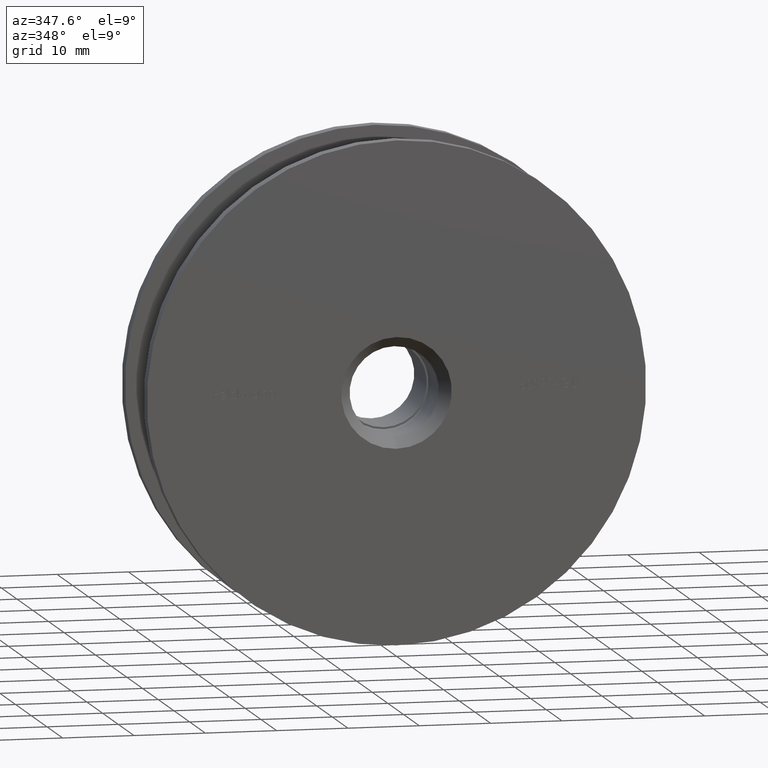
[diagram: clean part render]
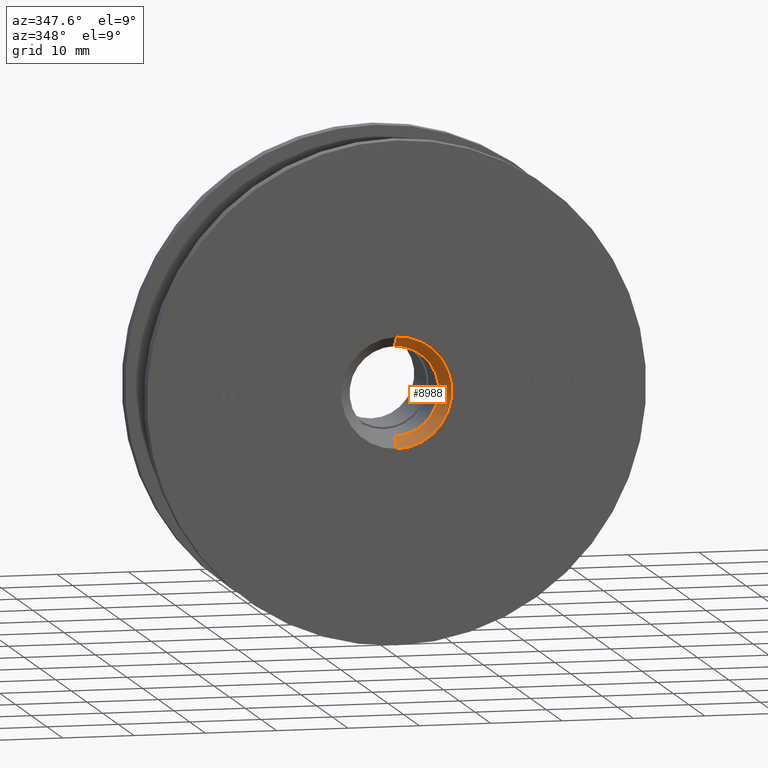
[diagram: same view with one face highlighted and labeled with its STEP entity id]
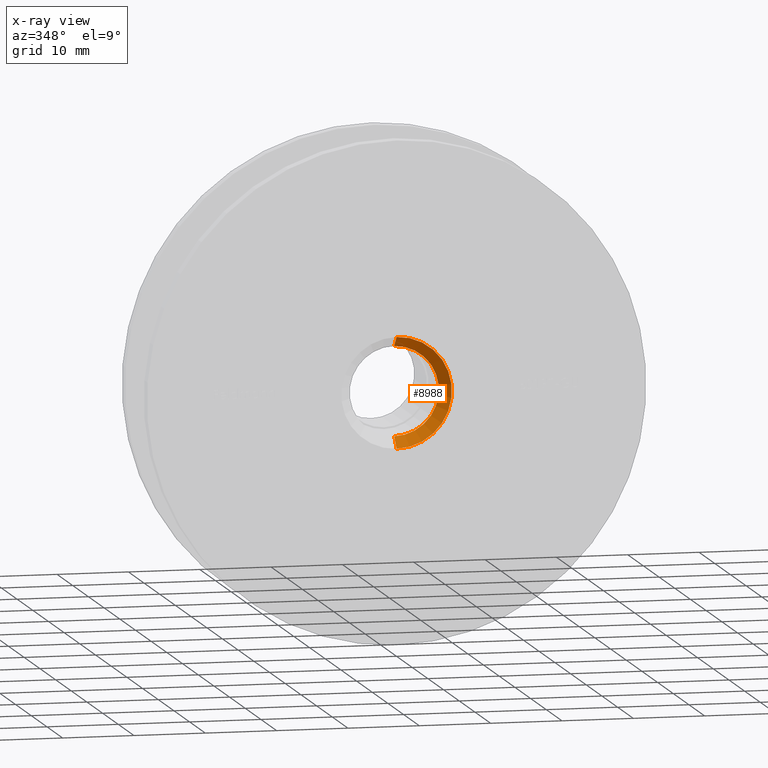
[diagram: x-ray of the same camera — body ghosted, the highlighted face saturated]
A machine part, auxiliary view. The second image highlights one B-rep face of the part: STEP entity #8988.
The next image is the same camera in x-ray: the body ghosted, the highlighted face saturated — about 0% of this face is hidden behind the body in this view.
In plain terms, the highlighted conical surface has half-angle 45 deg.
Its self-contained STEP definition (entity closure, byte-faithful):
#776 = AXIS2_PLACEMENT_3D ( 'NONE', #11486, #2050, #12398 ) ;
#813 = CARTESIAN_POINT ( 'NONE',  ( 9.491012693391995676E-16, -2.143131898507869431E-15, 7.750000000000007105 ) ) ;
#903 = CARTESIAN_POINT ( 'NONE',  ( 0.000000000000000000, 1.500000000000012212, -6.250000000000000000 ) ) ;
#1487 = DIRECTION ( 'NONE',  ( 0.000000000000000000, 0.000000000000000000, -1.000000000000000000 ) ) ;
#1919 = ORIENTED_EDGE ( 'NONE', *, *, #10002, .F. ) ;
#2050 = DIRECTION ( 'NONE',  ( 0.000000000000000000, -1.000000000000000000, 0.000000000000000000 ) ) ;
#2301 = CARTESIAN_POINT ( 'NONE',  ( 0.000000000000000000, 1.500000000000012212, 0.000000000000000000 ) ) ;
#2488 = VERTEX_POINT ( 'NONE', #903 ) ;
#2689 = DIRECTION ( 'NONE',  ( 8.659560562354909439E-17, -0.7071067811865493491, 0.7071067811865456854 ) ) ;
#3106 = VECTOR ( 'NONE', #2689, 1000.000000000000114 ) ;
#3785 = VERTEX_POINT ( 'NONE', #7500 ) ;
#4134 = VECTOR ( 'NONE', #9411, 1000.000000000000114 ) ;
#4577 = AXIS2_PLACEMENT_3D ( 'NONE', #2301, #9195, #1487 ) ;
#4811 = ORIENTED_EDGE ( 'NONE', *, *, #12326, .T. ) ;
#4965 = CARTESIAN_POINT ( 'NONE',  ( 0.000000000000000000, -2.143131898507869431E-15, 0.000000000000000000 ) ) ;
#5446 = VERTEX_POINT ( 'NONE', #813 ) ;
#5649 = CONICAL_SURFACE ( 'NONE', #4577, 6.250000000000000000, 0.7853981633974456145 ) ;
#5954 = ORIENTED_EDGE ( 'NONE', *, *, #9234, .F. ) ;
#6505 = CARTESIAN_POINT ( 'NONE',  ( 7.654042494670957606E-16, 1.500000000000012212, 6.250000000000000000 ) ) ;
#6664 = LINE ( 'NONE', #10491, #4134 ) ;
#7476 = AXIS2_PLACEMENT_3D ( 'NONE', #4965, #7812, #10680 ) ;
#7500 = CARTESIAN_POINT ( 'NONE',  ( 0.000000000000000000, -2.143131898507869431E-15, -7.750000000000007105 ) ) ;
#7812 = DIRECTION ( 'NONE',  ( 0.000000000000000000, 1.000000000000000000, 0.000000000000000000 ) ) ;
#8988 = ADVANCED_FACE ( 'NONE', ( #11679 ), #5649, .F. ) ;
#9195 = DIRECTION ( 'NONE',  ( 0.000000000000000000, -1.000000000000000000, 0.000000000000000000 ) ) ;
#9234 = EDGE_CURVE ( 'NONE', #2488, #10204, #9589, .T. ) ;
#9411 = DIRECTION ( 'NONE',  ( 0.000000000000000000, -0.7071067811865493491, -0.7071067811865456854 ) ) ;
#9589 = CIRCLE ( 'NONE', #776, 6.250000000000000000 ) ;
#9734 = LINE ( 'NONE', #6505, #3106 ) ;
#10002 = EDGE_CURVE ( 'NONE', #5446, #3785, #10921, .T. ) ;
#10204 = VERTEX_POINT ( 'NONE', #10355 ) ;
#10302 = EDGE_CURVE ( 'NONE', #10204, #5446, #9734, .T. ) ;
#10355 = CARTESIAN_POINT ( 'NONE',  ( 7.654042494670957606E-16, 1.500000000000012212, 6.250000000000000000 ) ) ;
#10491 = CARTESIAN_POINT ( 'NONE',  ( 0.000000000000000000, 1.500000000000012212, -6.250000000000000000 ) ) ;
#10680 = DIRECTION ( 'NONE',  ( 0.000000000000000000, 0.000000000000000000, -1.000000000000000000 ) ) ;
#10921 = CIRCLE ( 'NONE', #7476, 7.750000000000007105 ) ;
#11171 = EDGE_LOOP ( 'NONE', ( #11912, #5954, #4811, #1919 ) ) ;
#11486 = CARTESIAN_POINT ( 'NONE',  ( 0.000000000000000000, 1.500000000000012212, 0.000000000000000000 ) ) ;
#11679 = FACE_OUTER_BOUND ( 'NONE', #11171, .T. ) ;
#11912 = ORIENTED_EDGE ( 'NONE', *, *, #10302, .F. ) ;
#12326 = EDGE_CURVE ( 'NONE', #2488, #3785, #6664, .T. ) ;
#12398 = DIRECTION ( 'NONE',  ( 0.000000000000000000, 0.000000000000000000, -1.000000000000000000 ) ) ;